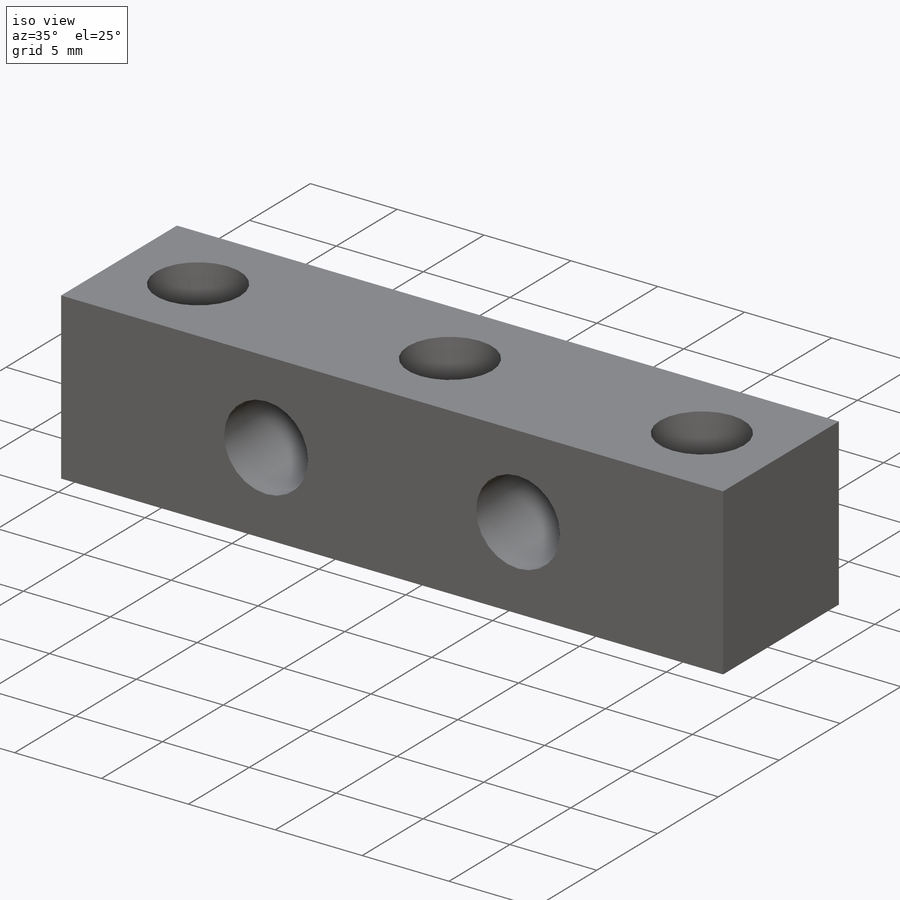
[diagram: iso view]
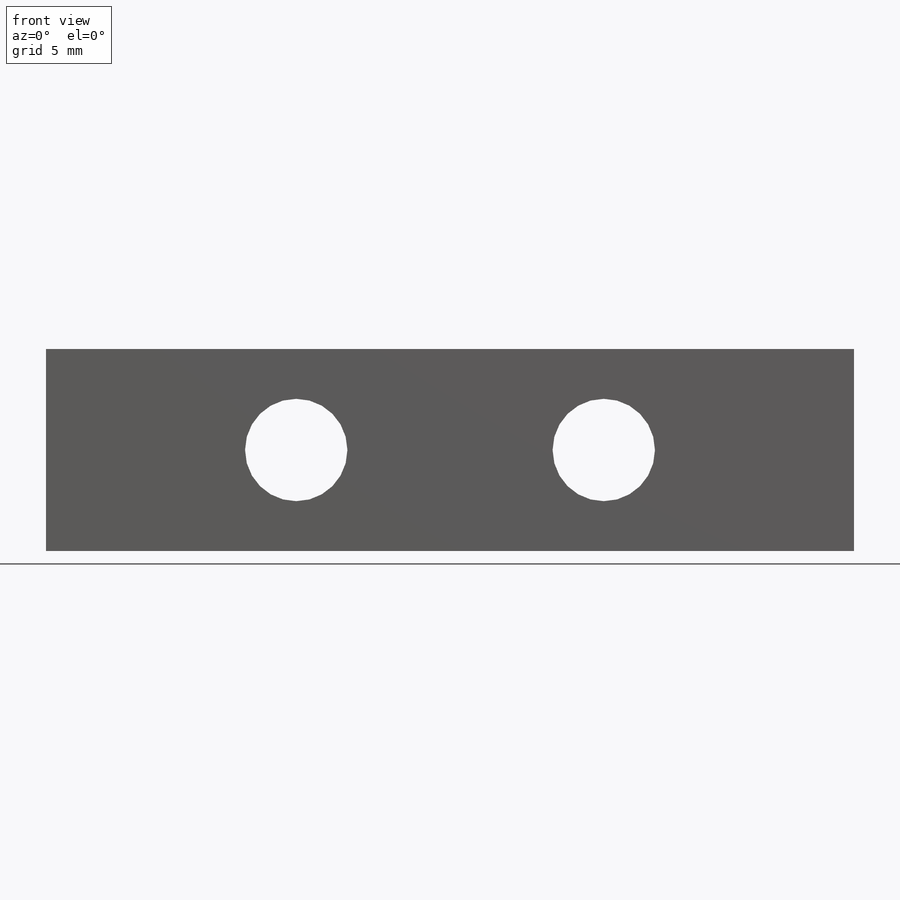
[diagram: front view]
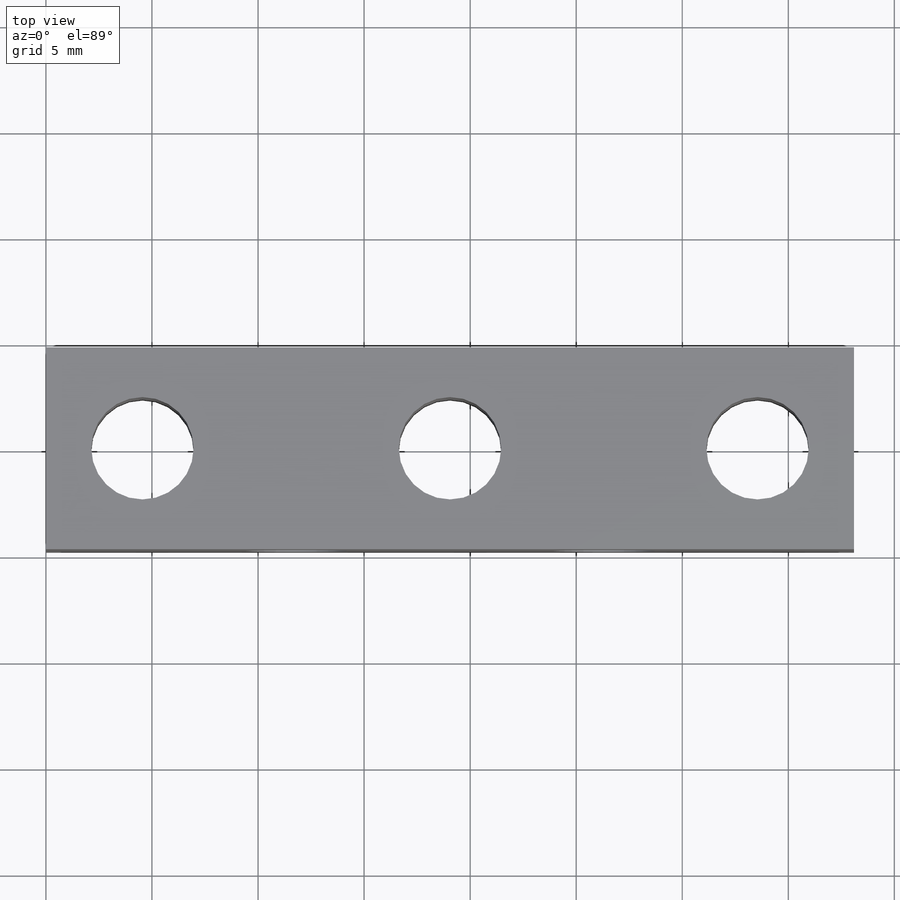
[diagram: top view]
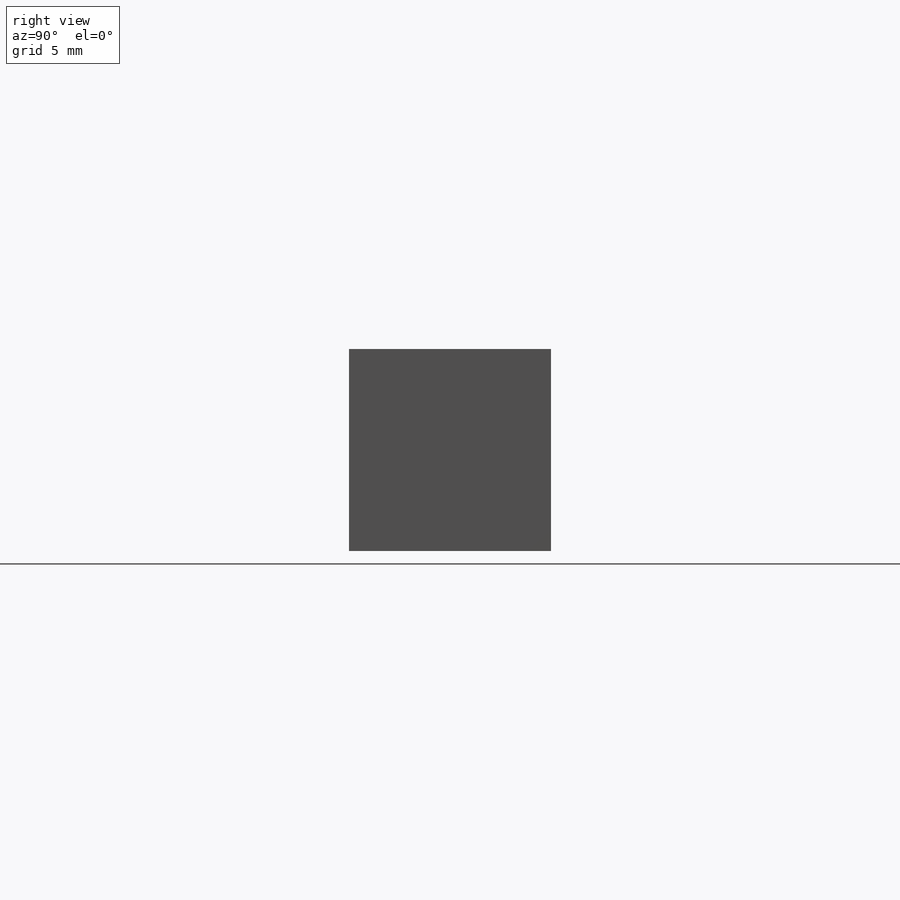
[diagram: right view]
SOLIDWORKS PART (.sldprt)
format: sldprt  version: not decoded by parser v0  size: 202,240 bytes
history: native  units: mm
features: sketch x5, hole x2, material x1, extrude x1 (+13 scaffold rows collapsed)
feature tree (22):
  scaffold x13  (default folders/planes/origin — collapsed)
  material  "6061-T6 (SS)"
  sketch  "Sketch1"
  extrude  "Boss-Extrude1"  Depth=38.1mm
  hole  "#10-24 Tapped Hole1"  Diameter=4.826mm Depth=9.525mm
  sketch  "Sketch3"  dims[D1=14.5mm D2=14.5mm]
  sketch  "Sketch2"  dims[hole-wizard template sketch: 59 standard entries collapsed; hole parameters kept: c18.Thread Major Dia.=4.826mm c18.Thru Tap Drill Depth=9.525mm]
  hole  "#10-24 Tapped Hole2"  Diameter=4.826mm Depth=9.525mm
  sketch  "Sketch5"  dims[D1=7.25mm D2=7.25mm]
  sketch  "Sketch4"  dims[hole-wizard template sketch: 59 standard entries collapsed; hole parameters kept: c18.Thread Major Dia.=4.826mm c18.Thru Tap Drill Depth=9.525mm]
decode coverage: 7 of 8 modeling features carry decoded parameters
note: ~ marks probable driven/reference dimensions
note: suppression state not decoded; provenance and decode notes live in map.json
